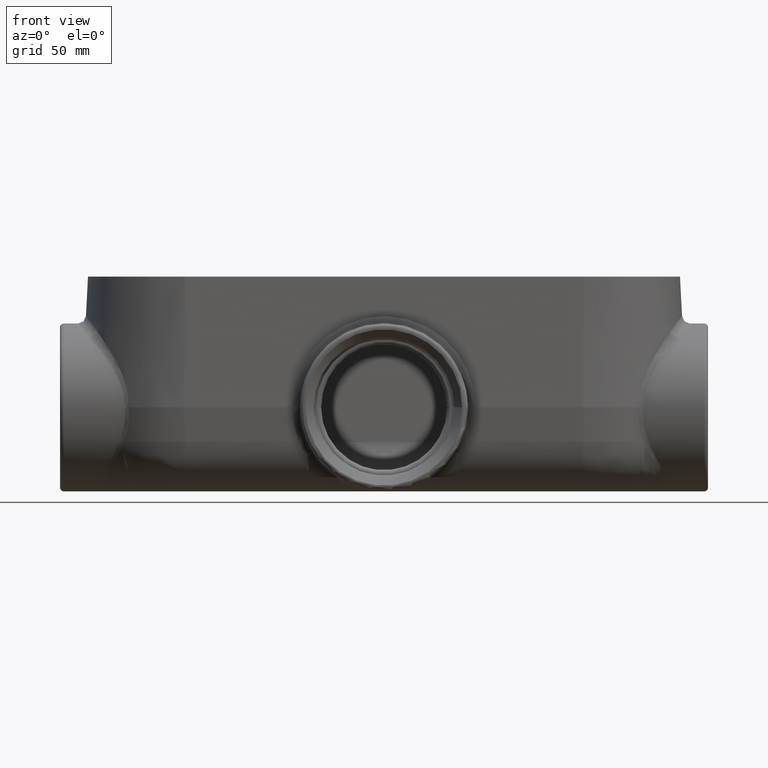
[diagram: clean part render]
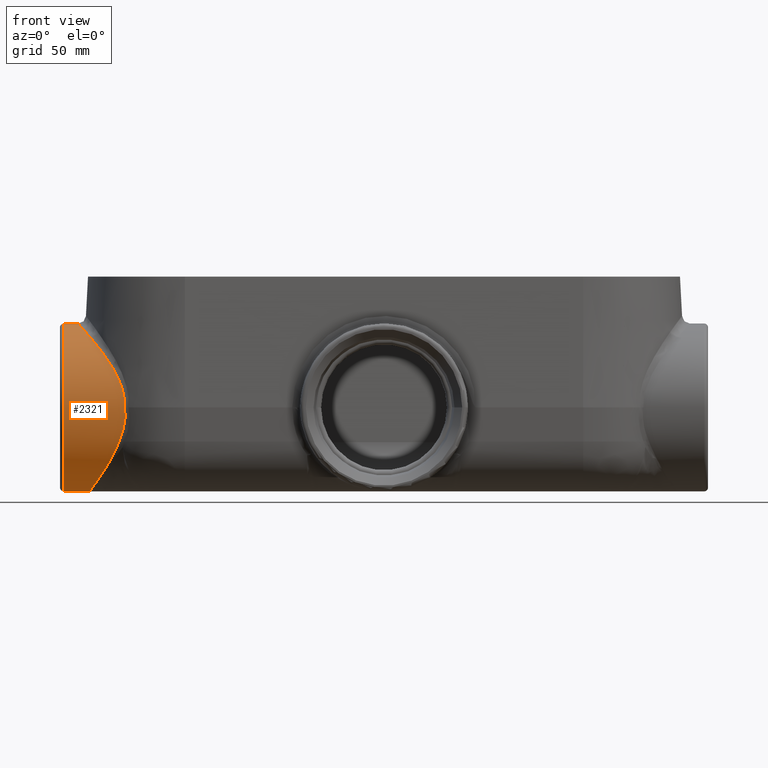
[diagram: same view with one face highlighted and labeled with its STEP entity id]
A machine part, front view. The second image highlights one B-rep face of the part: STEP entity #2321.
In plain terms, the highlighted cylindrical surface (bore or boss wall) has radius 34.1313 mm, axis along (1, 0, 0).
Its self-contained STEP definition (entity closure, byte-faithful):
#60=CYLINDRICAL_SURFACE('',#2557,1.34375);
#158=FACE_BOUND('',#369,.T.);
#211=FACE_OUTER_BOUND('',#368,.T.);
#368=EDGE_LOOP('',(#1730));
#369=EDGE_LOOP('',(#1731,#1732,#1733,#1734,#1735,#1736,#1737));
#546=B_SPLINE_CURVE_WITH_KNOTS('',3,(#4965,#4966,#4967,#4968),
 .UNSPECIFIED.,.F.,.F.,(4,4),(0.,1.),.UNSPECIFIED.);
#547=B_SPLINE_CURVE_WITH_KNOTS('',3,(#4970,#4971,#4972,#4973,#4974,#4975,
#4976,#4977,#4978,#4979,#4980,#4981,#4982,#4983,#4984,#4985,#4986,#4987,
#4988,#4989,#4990,#4991,#4992,#4993,#4994,#4995,#4996,#4997,#4998,#4999,
#5000,#5001,#5002,#5003,#5004,#5005,#5006),.UNSPECIFIED.,.F.,.F.,(4,3,3,
3,3,3,3,3,3,3,3,3,4),(0.,0.25,0.25343900419819,0.37970261507386,0.5,0.505675713028733,
0.568515824898813,0.625,0.631250147392502,0.75,0.756481970472387,0.881375322079641,
0.999975300137708),.UNSPECIFIED.);
#548=B_SPLINE_CURVE_WITH_KNOTS('',3,(#5008,#5009,#5010,#5011,#5012,#5013,
#5014,#5015,#5016,#5017,#5018,#5019,#5020,#5021,#5022,#5023,#5024,#5025,
#5026,#5027,#5028,#5029,#5030,#5031,#5032,#5033,#5034,#5035,#5036,#5037,
#5038,#5039,#5040,#5041,#5042,#5043,#5044,#5045,#5046,#5047,#5048,#5049,
#5050,#5051,#5052,#5053,#5054,#5055,#5056,#5057,#5058,#5059,#5060,#5061,
#5062,#5063,#5064,#5065,#5066,#5067,#5068,#5069,#5070,#5071,#5072,#5073,
#5074,#5075,#5076,#5077,#5078,#5079,#5080,#5081,#5082,#5083,#5084,#5085,
#5086,#5087,#5088,#5089,#5090,#5091,#5092,#5093,#5094,#5095,#5096,#5097,
#5098,#5099,#5100,#5101,#5102,#5103,#5104,#5105,#5106,#5107,#5108,#5109,
#5110,#5111,#5112,#5113,#5114,#5115,#5116,#5117,#5118,#5119,#5120,#5121,
#5122,#5123,#5124,#5125,#5126,#5127,#5128,#5129,#5130,#5131,#5132,#5133,
#5134,#5135,#5136,#5137,#5138,#5139,#5140,#5141,#5142,#5143,#5144,#5145,
#5146,#5147,#5148,#5149,#5150,#5151,#5152,#5153,#5154,#5155,#5156,#5157,
#5158,#5159,#5160,#5161,#5162,#5163,#5164,#5165,#5166,#5167,#5168,#5169,
#5170,#5171,#5172,#5173,#5174,#5175,#5176,#5177,#5178,#5179,#5180,#5181,
#5182,#5183,#5184,#5185,#5186,#5187,#5188,#5189,#5190,#5191,#5192,#5193,
#5194,#5195,#5196,#5197,#5198,#5199,#5200,#5201,#5202,#5203,#5204,#5205,
#5206,#5207,#5208,#5209,#5210,#5211,#5212,#5213,#5214,#5215,#5216,#5217,
#5218,#5219,#5220,#5221,#5222,#5223,#5224,#5225,#5226,#5227,#5228,#5229,
#5230,#5231,#5232,#5233,#5234,#5235,#5236,#5237,#5238,#5239,#5240,#5241,
#5242,#5243,#5244,#5245,#5246,#5247,#5248,#5249,#5250,#5251,#5252,#5253,
#5254,#5255,#5256,#5257,#5258,#5259,#5260,#5261,#5262,#5263,#5264,#5265,
#5266,#5267,#5268,#5269,#5270,#5271,#5272,#5273,#5274,#5275,#5276,#5277,
#5278,#5279,#5280,#5281,#5282,#5283,#5284,#5285,#5286,#5287,#5288,#5289,
#5290,#5291,#5292,#5293,#5294,#5295,#5296,#5297,#5298,#5299,#5300,#5301,
#5302,#5303,#5304,#5305,#5306,#5307,#5308,#5309,#5310,#5311,#5312,#5313,
#5314,#5315,#5316,#5317,#5318,#5319,#5320,#5321,#5322,#5323,#5324,#5325,
#5326,#5327,#5328,#5329,#5330,#5331,#5332,#5333,#5334,#5335,#5336,#5337,
#5338,#5339,#5340,#5341,#5342,#5343,#5344,#5345,#5346,#5347,#5348,#5349,
#5350,#5351,#5352,#5353,#5354,#5355,#5356),.UNSPECIFIED.,.F.,.F.,(4,3,3,
3,3,3,3,3,3,3,3,3,3,3,3,3,3,3,3,3,3,3,3,3,3,3,3,3,3,3,3,3,3,3,3,3,3,3,3,
3,3,3,3,3,3,3,3,3,3,3,3,3,3,3,3,3,3,3,3,3,3,3,3,3,3,3,3,3,3,3,3,3,3,3,3,
3,3,3,3,3,3,3,3,3,3,3,3,3,3,3,3,3,3,3,3,3,3,3,3,3,3,3,3,3,3,3,3,3,3,3,3,
3,3,3,3,3,4),(0.,0.00185403123234242,0.0057056478649271,0.0095664263885572,
0.015625,0.0173155324528526,0.0251013807362604,0.0312499999999999,0.0329218568058591,
0.0407588691764849,0.0486052164103672,0.0564617803745235,0.0624999999999998,
0.0722068884086565,0.0781249999999996,0.080093470432901,0.0879862197401328,
0.0937499999999995,0.0958932921614612,0.103811392851089,0.119671938115278,
0.124999999999999,0.135566911266893,0.15148857319233,0.156249999999999,
0.167431163078571,0.183388632555204,0.187499999999998,0.191370493156939,
0.199353652866863,0.215321734724285,0.231288358625257,0.24724895991254,
0.249999999999998,0.263199765493679,0.279139050789083,0.281249999999998,
0.287103416009191,0.295064004855109,0.296874999999997,0.310969256148258,
0.312499999999997,0.326850344149396,0.342706734256288,0.358540059347057,
0.374351982796038,0.374999999999997,0.382245482042361,0.390129728333218,
0.390624999999997,0.405886048881035,0.406249999999997,0.421620860272329,
0.437333930951147,0.437499999999997,0.453027872952672,0.460864346716804,
0.468749999999996,0.476512021356269,0.484339723564825,0.499999999999996,
0.515665083409847,0.531249999999996,0.546874999999996,0.547003543147062,
0.562499999999996,0.562683480705017,0.578396966975118,0.59412995848418,
0.609885084974499,0.624999999999996,0.62566501351515,0.633565135028443,
0.641472090849392,0.649385658497119,0.656249999999996,0.657305620318014,
0.673165153137192,0.687499999999996,0.689048547693168,0.720874332723891,
0.736814565468201,0.749999999999996,0.752771869923468,0.765624999999996,
0.768738512790066,0.781249999999996,0.784708231960899,0.800675907228072,
0.812499999999997,0.816638741350679,0.832592327186742,0.843749999999997,
0.848532099442459,0.8644518953113,0.872404743975445,0.874999999999998,0.880350685728842,
0.888285051628088,0.890624999999998,0.896213227201056,0.906249999999998,
0.912043028100169,0.927831224050163,0.937499999999999,0.943572783004577,
0.95142163079917,0.953124999999999,0.959252108021476,0.967070488679294,
0.968749999999999,0.974865931153049,0.982642317461226,0.990399573321078,
0.994270916701512,0.99813734603441,1.),.UNSPECIFIED.);
#549=B_SPLINE_CURVE_WITH_KNOTS('',3,(#5358,#5359,#5360,#5361,#5362,#5363,
#5364,#5365,#5366,#5367,#5368,#5369,#5370,#5371,#5372,#5373,#5374,#5375,
#5376,#5377,#5378,#5379,#5380,#5381,#5382,#5383,#5384,#5385,#5386,#5387,
#5388,#5389,#5390,#5391,#5392,#5393,#5394),.UNSPECIFIED.,.F.,.F.,(4,3,3,
3,3,3,3,3,3,3,3,3,4),(2.53546196081138E-5,0.118624677919555,0.243518029527616,
0.25,0.368749852607529,0.375,0.431484175101172,0.494324286971211,0.500000000000001,
0.620297384925995,0.746560995801694,0.750000000000001,1.),.UNSPECIFIED.);
#550=B_SPLINE_CURVE_WITH_KNOTS('',3,(#5396,#5397,#5398,#5399),
 .UNSPECIFIED.,.F.,.F.,(4,4),(0.,1.),.UNSPECIFIED.);
#551=B_SPLINE_CURVE_WITH_KNOTS('',3,(#5400,#5401,#5402,#5403,#5404,#5405,
#5406,#5407,#5408,#5409,#5410,#5411,#5412,#5413,#5414,#5415,#5416,#5417,
#5418,#5419,#5420,#5421,#5422,#5423,#5424,#5425,#5426,#5427,#5428,#5429,
#5430,#5431,#5432,#5433,#5434,#5435,#5436,#5437,#5438,#5439,#5440,#5441,
#5442,#5443,#5444,#5445,#5446,#5447,#5448,#5449,#5450,#5451,#5452,#5453,
#5454,#5455,#5456,#5457),.UNSPECIFIED.,.F.,.F.,(4,3,3,3,3,3,3,3,3,3,3,3,
3,3,3,3,3,3,3,4),(0.,0.0531373176590954,0.0624999999999998,0.125,0.187499999999999,
0.249999999999999,0.312499999999999,0.374999999999999,0.452227685967908,
0.499999999999999,0.5625,0.625,0.702675485156797,0.75,0.8125,0.875,0.9375,
0.96875,0.984375,1.),.UNSPECIFIED.);
#552=B_SPLINE_CURVE_WITH_KNOTS('',3,(#5458,#5459,#5460,#5461,#5462,#5463,
#5464,#5465,#5466,#5467,#5468,#5469,#5470,#5471,#5472,#5473,#5474,#5475,
#5476,#5477,#5478,#5479,#5480,#5481,#5482,#5483,#5484,#5485,#5486,#5487,
#5488,#5489,#5490,#5491,#5492,#5493,#5494,#5495,#5496,#5497,#5498,#5499,
#5500,#5501,#5502,#5503,#5504,#5505,#5506,#5507,#5508,#5509,#5510,#5511,
#5512,#5513,#5514,#5515,#5516,#5517,#5518,#5519,#5520,#5521,#5522,#5523,
#5524,#5525,#5526,#5527,#5528,#5529,#5530,#5531,#5532,#5533,#5534,#5535,
#5536,#5537,#5538,#5539,#5540,#5541,#5542,#5543,#5544,#5545,#5546,#5547,
#5548,#5549,#5550,#5551,#5552,#5553,#5554,#5555,#5556,#5557,#5558,#5559,
#5560,#5561,#5562,#5563,#5564,#5565,#5566,#5567,#5568,#5569,#5570,#5571,
#5572,#5573,#5574,#5575),.UNSPECIFIED.,.F.,.F.,(4,3,3,3,3,3,3,3,3,3,3,3,
3,3,3,3,3,3,3,3,3,3,3,3,3,3,3,3,3,3,3,3,3,3,3,3,3,3,3,4),(0.,0.0312485716751018,
0.0625000000000001,0.125,0.125277307232812,0.156658032581049,0.188083229023406,
0.250000000000001,0.250995913726812,0.31392985798759,0.375000000000002,
0.376869432011077,0.408356100356295,0.437500000000003,0.439777712535055,
0.500000000000003,0.502275318924888,0.564721541115607,0.625000000000002,
0.627112477440115,0.687500000000002,0.689440054709644,0.72056963053039,
0.750000000000002,0.751692780535557,0.812500000000001,0.813861879370144,
0.844908622372178,0.875000000000001,0.875943872764356,0.937500000000001,
0.937983016718585,0.96875,0.984375,0.9921875,0.99609375,0.998046875,0.9990234375,
0.99951171875,1.),.UNSPECIFIED.);
#894=CIRCLE('',#2558,1.34375);
#982=VERTEX_POINT('',#3663);
#1098=VERTEX_POINT('',#4961);
#1099=VERTEX_POINT('',#4963);
#1100=VERTEX_POINT('',#4964);
#1101=VERTEX_POINT('',#4969);
#1102=VERTEX_POINT('',#5007);
#1103=VERTEX_POINT('',#5357);
#1104=VERTEX_POINT('',#5395);
#1349=EDGE_CURVE('',#1098,#1098,#894,.F.);
#1350=EDGE_CURVE('',#1099,#1100,#546,.T.);
#1351=EDGE_CURVE('',#1100,#1101,#547,.T.);
#1352=EDGE_CURVE('',#1101,#1102,#548,.T.);
#1353=EDGE_CURVE('',#1102,#1103,#549,.T.);
#1354=EDGE_CURVE('',#1103,#1104,#550,.T.);
#1355=EDGE_CURVE('',#1104,#982,#551,.T.);
#1356=EDGE_CURVE('',#982,#1099,#552,.F.);
#1730=ORIENTED_EDGE('',*,*,#1349,.T.);
#1731=ORIENTED_EDGE('',*,*,#1350,.T.);
#1732=ORIENTED_EDGE('',*,*,#1351,.T.);
#1733=ORIENTED_EDGE('',*,*,#1352,.T.);
#1734=ORIENTED_EDGE('',*,*,#1353,.T.);
#1735=ORIENTED_EDGE('',*,*,#1354,.T.);
#1736=ORIENTED_EDGE('',*,*,#1355,.T.);
#1737=ORIENTED_EDGE('',*,*,#1356,.T.);
#2321=ADVANCED_FACE('',(#211,#158),#60,.T.);
#2557=AXIS2_PLACEMENT_3D('',#4960,#2984,#2985);
#2558=AXIS2_PLACEMENT_3D('',#4962,#2986,#2987);
#2984=DIRECTION('center_axis',(1.,0.,0.));
#2985=DIRECTION('ref_axis',(0.,0.,-1.));
#2986=DIRECTION('center_axis',(-1.,0.,0.));
#2987=DIRECTION('ref_axis',(0.,0.,1.));
#3663=CARTESIAN_POINT('',(-2.76805246950778,-0.656250000065793,-3.4375));
#4960=CARTESIAN_POINT('Origin',(-3.25,-0.656250000000008,-2.09375));
#4961=CARTESIAN_POINT('',(-3.188,-0.656250000000008,-0.75));
#4962=CARTESIAN_POINT('Origin',(-3.188,-0.656250000000008,-2.09375));
#4963=CARTESIAN_POINT('',(-2.3264638163102,-1.85817305475021,-2.69462022971683));
#4964=CARTESIAN_POINT('',(-2.2913044444794,-1.90003277017154,-2.6023446157053));
#4965=CARTESIAN_POINT('Ctrl Pts',(-2.3264638163102,-1.85817305475021,-2.69462022971683));
#4966=CARTESIAN_POINT('Ctrl Pts',(-2.31613775366073,-1.87350320727616,-2.66395526606491));
#4967=CARTESIAN_POINT('Ctrl Pts',(-2.30444514049265,-1.88742678421558,-2.63317291716365));
#4968=CARTESIAN_POINT('Ctrl Pts',(-2.2913044444794,-1.90003277017154,-2.6023446157053));
#4969=CARTESIAN_POINT('',(-2.22114857445606,-1.9999964089252,-2.09675419691271));
#4970=CARTESIAN_POINT('Ctrl Pts',(-2.2913044444794,-1.90003277017154,-2.6023446157053));
#4971=CARTESIAN_POINT('Ctrl Pts',(-2.27498384534427,-1.91568926529662,-2.56405620627956));
#4972=CARTESIAN_POINT('Ctrl Pts',(-2.26039079579239,-1.92969158644605,-2.52479688368842));
#4973=CARTESIAN_POINT('Ctrl Pts',(-2.24816657275677,-1.94197290089884,-2.48436603716328));
#4974=CARTESIAN_POINT('Ctrl Pts',(-2.24799841613941,-1.94214184286669,-2.48380986975954));
#4975=CARTESIAN_POINT('Ctrl Pts',(-2.24783070614044,-1.94231046197272,-2.48325347100162));
#4976=CARTESIAN_POINT('Ctrl Pts',(-2.24766344456631,-1.94247875791971,-2.48269684060422));
#4977=CARTESIAN_POINT('Ctrl Pts',(-2.24152240806442,-1.94865777159288,-2.46226006302302));
#4978=CARTESIAN_POINT('Ctrl Pts',(-2.23598593394696,-1.95440102374301,-2.44151097172504));
#4979=CARTESIAN_POINT('Ctrl Pts',(-2.23115646249839,-1.95968228413214,-2.42044304123918));
#4980=CARTESIAN_POINT('Ctrl Pts',(-2.22655519391585,-1.96471399366048,-2.40037061557609));
#4981=CARTESIAN_POINT('Ctrl Pts',(-2.2225957408785,-1.96932634138665,-2.38000881049778));
#4982=CARTESIAN_POINT('Ctrl Pts',(-2.21936500845538,-1.9735002926569,-2.35929872740546));
#4983=CARTESIAN_POINT('Ctrl Pts',(-2.21921258028649,-1.97369722253713,-2.35832161149803));
#4984=CARTESIAN_POINT('Ctrl Pts',(-2.21906176124022,-1.97389319999301,-2.35734360545364));
#4985=CARTESIAN_POINT('Ctrl Pts',(-2.21891256192706,-1.97408822149878,-2.35636470725415));
#4986=CARTESIAN_POINT('Ctrl Pts',(-2.21726066348147,-1.97624745209718,-2.3455265848801));
#4987=CARTESIAN_POINT('Ctrl Pts',(-2.21580738756752,-1.97828946140787,-2.33457896467909));
#4988=CARTESIAN_POINT('Ctrl Pts',(-2.21457623333023,-1.98019288761952,-2.32361798999631));
#4989=CARTESIAN_POINT('Ctrl Pts',(-2.2134696036721,-1.98190379258501,-2.31376565850234));
#4990=CARTESIAN_POINT('Ctrl Pts',(-2.21254244185033,-1.98350272058467,-2.30390262982509));
#4991=CARTESIAN_POINT('Ctrl Pts',(-2.21179682591855,-1.9849896123342,-2.29403773839078));
#4992=CARTESIAN_POINT('Ctrl Pts',(-2.21171432122651,-1.98515414147133,-2.29294615786641));
#4993=CARTESIAN_POINT('Ctrl Pts',(-2.21163403870132,-1.98531730803285,-2.29185449698136));
#4994=CARTESIAN_POINT('Ctrl Pts',(-2.2115559811046,-1.9854791129537,-2.29076276044164));
#4995=CARTESIAN_POINT('Ctrl Pts',(-2.21007292358237,-1.98855333013551,-2.27002028109898));
#4996=CARTESIAN_POINT('Ctrl Pts',(-2.20939307390433,-1.99113597186582,-2.24925050113644));
#4997=CARTESIAN_POINT('Ctrl Pts',(-2.20952830785011,-1.99323128457834,-2.22845376437177));
#4998=CARTESIAN_POINT('Ctrl Pts',(-2.20953568960616,-1.99334565739511,-2.22731857278483));
#4999=CARTESIAN_POINT('Ctrl Pts',(-2.20954549962693,-1.99345857834444,-2.22618330081084));
#5000=CARTESIAN_POINT('Ctrl Pts',(-2.20955773985827,-1.99357004820208,-2.22504794810695));
#5001=CARTESIAN_POINT('Ctrl Pts',(-2.20979358226497,-1.99571782782911,-2.20317219210821));
#5002=CARTESIAN_POINT('Ctrl Pts',(-2.21093164414155,-1.99732688800437,-2.18126646190663));
#5003=CARTESIAN_POINT('Ctrl Pts',(-2.21296935413441,-1.99839869880471,-2.15933149736722));
#5004=CARTESIAN_POINT('Ctrl Pts',(-2.21490438396051,-1.99941650107975,-2.13850183526271));
#5005=CARTESIAN_POINT('Ctrl Pts',(-2.21765069409303,-1.99994983805196,-2.11764581340637));
#5006=CARTESIAN_POINT('Ctrl Pts',(-2.22119399116915,-1.99999662581896,-2.09676228228483));
#5007=CARTESIAN_POINT('',(-2.2211474418786,0.687496404115879,-2.09675435937861));
#5008=CARTESIAN_POINT('Ctrl Pts',(-2.22119620246496,-1.9999961637795,-2.09674923362262));
#5009=CARTESIAN_POINT('Ctrl Pts',(-2.22098925303896,-2.00000260305783,-2.09391111660619));
#5010=CARTESIAN_POINT('Ctrl Pts',(-2.22079690452424,-2.00000019606449,-2.09107356679661));
#5011=CARTESIAN_POINT('Ctrl Pts',(-2.22061959607984,-1.99998869200376,-2.08823654584058));
#5012=CARTESIAN_POINT('Ctrl Pts',(-2.22025125053009,-1.99996479314439,-2.08234283870629));
#5013=CARTESIAN_POINT('Ctrl Pts',(-2.21994781139044,-1.99990163539773,-2.07645141405731));
#5014=CARTESIAN_POINT('Ctrl Pts',(-2.21970829702608,-1.9997999242892,-2.07056234577987));
#5015=CARTESIAN_POINT('Ctrl Pts',(-2.21946821292577,-1.99969797123913,-2.0646592690984));
#5016=CARTESIAN_POINT('Ctrl Pts',(-2.21929235958084,-1.99955728019212,-2.05875855965585));
#5017=CARTESIAN_POINT('Ctrl Pts',(-2.21918102355269,-1.99937772005505,-2.05285999404038));
#5018=CARTESIAN_POINT('Ctrl Pts',(-2.21900630813766,-1.99909594312807,-2.04360359827343));
#5019=CARTESIAN_POINT('Ctrl Pts',(-2.2189904699617,-1.99871844848452,-2.03435248373389));
#5020=CARTESIAN_POINT('Ctrl Pts',(-2.21913262538018,-1.99824558779523,-2.02510750593437));
#5021=CARTESIAN_POINT('Ctrl Pts',(-2.21917229120975,-1.99811364480136,-2.02252786656736));
#5022=CARTESIAN_POINT('Ctrl Pts',(-2.21922422925348,-1.99797427835836,-2.01994873293555));
#5023=CARTESIAN_POINT('Ctrl Pts',(-2.21928842440983,-1.99782749554946,-2.0173701073091));
#5024=CARTESIAN_POINT('Ctrl Pts',(-2.21958407904044,-1.99715147854738,-2.00549409281828));
#5025=CARTESIAN_POINT('Ctrl Pts',(-2.22013970108406,-1.99631815870918,-1.99362883164831));
#5026=CARTESIAN_POINT('Ctrl Pts',(-2.22095554079999,-1.99532565078236,-1.98176571178628));
#5027=CARTESIAN_POINT('Ctrl Pts',(-2.22159982355646,-1.99454185007932,-1.97239720052628));
#5028=CARTESIAN_POINT('Ctrl Pts',(-2.22240637915924,-1.99365878347763,-1.96303013388692));
#5029=CARTESIAN_POINT('Ctrl Pts',(-2.22336529980406,-1.99268367310993,-1.95372040436989));
#5030=CARTESIAN_POINT('Ctrl Pts',(-2.22362603769293,-1.99241853311105,-1.95118901740541));
#5031=CARTESIAN_POINT('Ctrl Pts',(-2.22389809809815,-1.99214649500118,-1.94866098525405));
#5032=CARTESIAN_POINT('Ctrl Pts',(-2.22418130024682,-1.99186768998838,-1.94613744909761));
#5033=CARTESIAN_POINT('Ctrl Pts',(-2.22550884141822,-1.99056076087422,-1.93430809624489));
#5034=CARTESIAN_POINT('Ctrl Pts',(-2.22708120905047,-1.98910513465779,-1.92257752579669));
#5035=CARTESIAN_POINT('Ctrl Pts',(-2.22888458406849,-1.98750494654588,-1.91092676127171));
#5036=CARTESIAN_POINT('Ctrl Pts',(-2.23069010713201,-1.98590285240951,-1.89926211922702));
#5037=CARTESIAN_POINT('Ctrl Pts',(-2.23272718714764,-1.98415585217902,-1.88767748472175));
#5038=CARTESIAN_POINT('Ctrl Pts',(-2.23498176180285,-1.98226839384795,-1.87617407356282));
#5039=CARTESIAN_POINT('Ctrl Pts',(-2.23723927214016,-1.98037847785701,-1.86465568380997));
#5040=CARTESIAN_POINT('Ctrl Pts',(-2.23971484301231,-1.97834773747779,-1.85321872544826));
#5041=CARTESIAN_POINT('Ctrl Pts',(-2.2423945149753,-1.97617992255397,-1.84185902646124));
#5042=CARTESIAN_POINT('Ctrl Pts',(-2.24445399643699,-1.97451383255876,-1.83312844682416));
#5043=CARTESIAN_POINT('Ctrl Pts',(-2.24663403652558,-1.97276677589736,-1.82444350336674));
#5044=CARTESIAN_POINT('Ctrl Pts',(-2.24892844859101,-1.97094010564517,-1.81580315319785));
#5045=CARTESIAN_POINT('Ctrl Pts',(-2.25261688711494,-1.96800359697255,-1.80191314586071));
#5046=CARTESIAN_POINT('Ctrl Pts',(-2.25660164370736,-1.96486073265925,-1.78813546990492));
#5047=CARTESIAN_POINT('Ctrl Pts',(-2.26085770627746,-1.96151669185873,-1.77446497740239));
#5048=CARTESIAN_POINT('Ctrl Pts',(-2.26345254946193,-1.95947789159748,-1.7661303291884));
#5049=CARTESIAN_POINT('Ctrl Pts',(-2.26614824390579,-1.95736431110681,-1.75783552244252));
#5050=CARTESIAN_POINT('Ctrl Pts',(-2.26893981255754,-1.95517643252135,-1.74957830305593));
#5051=CARTESIAN_POINT('Ctrl Pts',(-2.26986833853539,-1.95444870472511,-1.7468318032697));
#5052=CARTESIAN_POINT('Ctrl Pts',(-2.27080761505173,-1.95371263900956,-1.74408901776025));
#5053=CARTESIAN_POINT('Ctrl Pts',(-2.27175742433138,-1.95296828224228,-1.74135000082788));
#5054=CARTESIAN_POINT('Ctrl Pts',(-2.27556576526891,-1.94998372059425,-1.7303676799181));
#5055=CARTESIAN_POINT('Ctrl Pts',(-2.27954351232914,-1.94686580119324,-1.71944597856856));
#5056=CARTESIAN_POINT('Ctrl Pts',(-2.2836721206086,-1.94362101932427,-1.70860077454665));
#5057=CARTESIAN_POINT('Ctrl Pts',(-2.28668708915448,-1.94125147622137,-1.70068092679494));
#5058=CARTESIAN_POINT('Ctrl Pts',(-2.28978247876536,-1.93881430384296,-1.692801883734));
#5059=CARTESIAN_POINT('Ctrl Pts',(-2.29294245434929,-1.93631898585687,-1.6849872335613));
#5060=CARTESIAN_POINT('Ctrl Pts',(-2.29411750797627,-1.93539108867155,-1.68208131458026));
#5061=CARTESIAN_POINT('Ctrl Pts',(-2.29530182388257,-1.93445487835137,-1.67918343538485));
#5062=CARTESIAN_POINT('Ctrl Pts',(-2.29649466581714,-1.9335107784603,-1.67629464821517));
#5063=CARTESIAN_POINT('Ctrl Pts',(-2.30090145772096,-1.93002293012446,-1.66562241785306));
#5064=CARTESIAN_POINT('Ctrl Pts',(-2.30542461551531,-1.92642739860004,-1.65507427004643));
#5065=CARTESIAN_POINT('Ctrl Pts',(-2.31005509384477,-1.92272388715509,-1.64463090874776));
#5066=CARTESIAN_POINT('Ctrl Pts',(-2.31933028672473,-1.91530547796689,-1.62371207845239));
#5067=CARTESIAN_POINT('Ctrl Pts',(-2.32903603085427,-1.90745380466094,-1.60321370958039));
#5068=CARTESIAN_POINT('Ctrl Pts',(-2.33907625682647,-1.89918996924624,-1.58309914322007));
#5069=CARTESIAN_POINT('Ctrl Pts',(-2.34244908824087,-1.89641388395023,-1.57634202027335));
#5070=CARTESIAN_POINT('Ctrl Pts',(-2.34585967228624,-1.89359128873526,-1.56962820970703));
#5071=CARTESIAN_POINT('Ctrl Pts',(-2.34930515291364,-1.89072256949182,-1.56295627987848));
#5072=CARTESIAN_POINT('Ctrl Pts',(-2.3561384234066,-1.88503316453541,-1.54972413430611));
#5073=CARTESIAN_POINT('Ctrl Pts',(-2.3631101309548,-1.87916130450761,-1.53665426600416));
#5074=CARTESIAN_POINT('Ctrl Pts',(-2.37019931234317,-1.87310889305217,-1.52373377385036));
#5075=CARTESIAN_POINT('Ctrl Pts',(-2.38088091518273,-1.8639894402061,-1.50426586096767));
#5076=CARTESIAN_POINT('Ctrl Pts',(-2.39182918383668,-1.85446010958307,-1.48513704890192));
#5077=CARTESIAN_POINT('Ctrl Pts',(-2.40298390011694,-1.84452165276306,-1.46631510812212));
#5078=CARTESIAN_POINT('Ctrl Pts',(-2.40631975571904,-1.84154952366302,-1.46068634312127));
#5079=CARTESIAN_POINT('Ctrl Pts',(-2.40967408063476,-1.83854080112728,-1.45508502723025));
#5080=CARTESIAN_POINT('Ctrl Pts',(-2.41304551932414,-1.83549536550578,-1.44951048205469));
#5081=CARTESIAN_POINT('Ctrl Pts',(-2.42096260118176,-1.82834383011426,-1.43641988942047));
#5082=CARTESIAN_POINT('Ctrl Pts',(-2.42897370836632,-1.82099011479415,-1.42347737855376));
#5083=CARTESIAN_POINT('Ctrl Pts',(-2.43706167322795,-1.81343231679384,-1.41067376046083));
#5084=CARTESIAN_POINT('Ctrl Pts',(-2.44860460945922,-1.80264602112379,-1.39240076475611));
#5085=CARTESIAN_POINT('Ctrl Pts',(-2.46030407941308,-1.79144407849831,-1.37441064656685));
#5086=CARTESIAN_POINT('Ctrl Pts',(-2.47211981623333,-1.77981272409115,-1.35668089284228));
#5087=CARTESIAN_POINT('Ctrl Pts',(-2.47516408561265,-1.776815959979,-1.35211290464251));
#5088=CARTESIAN_POINT('Ctrl Pts',(-2.47821607514991,-1.77379068688781,-1.34756220306489));
#5089=CARTESIAN_POINT('Ctrl Pts',(-2.48127240470047,-1.77073947582762,-1.34303246022635));
#5090=CARTESIAN_POINT('Ctrl Pts',(-2.48414967187973,-1.76786702725973,-1.33876810319801));
#5091=CARTESIAN_POINT('Ctrl Pts',(-2.48703074451681,-1.76497162960688,-1.33452237865162));
#5092=CARTESIAN_POINT('Ctrl Pts',(-2.48991278440161,-1.76205544545848,-1.33029837727571));
#5093=CARTESIAN_POINT('Ctrl Pts',(-2.4958571909043,-1.75604061405167,-1.32158608242555));
#5094=CARTESIAN_POINT('Ctrl Pts',(-2.5018057126163,-1.74993735392767,-1.31296619938197));
#5095=CARTESIAN_POINT('Ctrl Pts',(-2.50775643976013,-1.74374260045348,-1.30443136523597));
#5096=CARTESIAN_POINT('Ctrl Pts',(-2.51965920778639,-1.73135172589293,-1.28735981271355));
#5097=CARTESIAN_POINT('Ctrl Pts',(-2.53157079928681,-1.71859482421645,-1.27062850866519));
#5098=CARTESIAN_POINT('Ctrl Pts',(-2.54345633005362,-1.70546686727991,-1.25422154392773));
#5099=CARTESIAN_POINT('Ctrl Pts',(-2.55534077561894,-1.69234010898385,-1.23781607721866));
#5100=CARTESIAN_POINT('Ctrl Pts',(-2.56719917123893,-1.67884236466395,-1.2217348929532));
#5101=CARTESIAN_POINT('Ctrl Pts',(-2.579003312799,-1.66496210162456,-1.20596401268192));
#5102=CARTESIAN_POINT('Ctrl Pts',(-2.59080300183453,-1.65108707422312,-1.1901990811898));
#5103=CARTESIAN_POINT('Ctrl Pts',(-2.60254848290654,-1.63682981920744,-1.17474422027718));
#5104=CARTESIAN_POINT('Ctrl Pts',(-2.61421326901068,-1.62217552947589,-1.15959159021424));
#5105=CARTESIAN_POINT('Ctrl Pts',(-2.61622386332392,-1.61964965104693,-1.15697981563362));
#5106=CARTESIAN_POINT('Ctrl Pts',(-2.61823205981022,-1.61711197575776,-1.15437702098179));
#5107=CARTESIAN_POINT('Ctrl Pts',(-2.62023772978483,-1.61456240763241,-1.15178318931737));
#5108=CARTESIAN_POINT('Ctrl Pts',(-2.62986113492647,-1.60232932476379,-1.13933772556111));
#5109=CARTESIAN_POINT('Ctrl Pts',(-2.63942597705543,-1.58982296134387,-1.12709911229368));
#5110=CARTESIAN_POINT('Ctrl Pts',(-2.64891750574693,-1.57703332930681,-1.11506612707078));
#5111=CARTESIAN_POINT('Ctrl Pts',(-2.66037893540459,-1.56158929782312,-1.10053577920097));
#5112=CARTESIAN_POINT('Ctrl Pts',(-2.67173346824532,-1.54573222603011,-1.08630526466723));
#5113=CARTESIAN_POINT('Ctrl Pts',(-2.68295622577873,-1.52943899671353,-1.07237590630173));
#5114=CARTESIAN_POINT('Ctrl Pts',(-2.68444253276932,-1.52728117226082,-1.07053114554205));
#5115=CARTESIAN_POINT('Ctrl Pts',(-2.6859265282127,-1.52511569734372,-1.06869166716305));
#5116=CARTESIAN_POINT('Ctrl Pts',(-2.68740813638165,-1.52294252714279,-1.06685750512377));
#5117=CARTESIAN_POINT('Ctrl Pts',(-2.69151646306741,-1.51691657958373,-1.06177158766604));
#5118=CARTESIAN_POINT('Ctrl Pts',(-2.69560675442417,-1.51083100853274,-1.05672616604936));
#5119=CARTESIAN_POINT('Ctrl Pts',(-2.69967710350276,-1.5046852455977,-1.0517223144128));
#5120=CARTESIAN_POINT('Ctrl Pts',(-2.70521273866403,-1.4963270677758,-1.04491712485135));
#5121=CARTESIAN_POINT('Ctrl Pts',(-2.71071149106431,-1.4878575519156,-1.0381888208403));
#5122=CARTESIAN_POINT('Ctrl Pts',(-2.7161503029268,-1.47930579241413,-1.0315620567265));
#5123=CARTESIAN_POINT('Ctrl Pts',(-2.71738760610469,-1.47736030882777,-1.03005450020416));
#5124=CARTESIAN_POINT('Ctrl Pts',(-2.7186218070864,-1.47541056938625,-1.02855219867699));
#5125=CARTESIAN_POINT('Ctrl Pts',(-2.71985288142398,-1.47345654922158,-1.02705514284143));
#5126=CARTESIAN_POINT('Ctrl Pts',(-2.72943384418929,-1.45824918613311,-1.01540415168657));
#5127=CARTESIAN_POINT('Ctrl Pts',(-2.73883422832306,-1.44276885403332,-1.00406061404912));
#5128=CARTESIAN_POINT('Ctrl Pts',(-2.74803903540738,-1.42700757177336,-0.993024407782785));
#5129=CARTESIAN_POINT('Ctrl Pts',(-2.74903874775137,-1.42529577615526,-0.991825791501726));
#5130=CARTESIAN_POINT('Ctrl Pts',(-2.75003615401491,-1.42358066772571,-0.990630798769288));
#5131=CARTESIAN_POINT('Ctrl Pts',(-2.75103122359909,-1.42186225181733,-0.989439446531219));
#5132=CARTESIAN_POINT('Ctrl Pts',(-2.76035975428002,-1.40575252865955,-0.978270814627189));
#5133=CARTESIAN_POINT('Ctrl Pts',(-2.76948624435097,-1.3893464317433,-0.967418189552606));
#5134=CARTESIAN_POINT('Ctrl Pts',(-2.77839108920002,-1.37263800689996,-0.956889281713138));
#5135=CARTESIAN_POINT('Ctrl Pts',(-2.78823048345413,-1.35417605925401,-0.945255381622378));
#5136=CARTESIAN_POINT('Ctrl Pts',(-2.79779926664376,-1.33534500291721,-0.934016714077587));
#5137=CARTESIAN_POINT('Ctrl Pts',(-2.80707392410698,-1.3161259321716,-0.923182685829827));
#5138=CARTESIAN_POINT('Ctrl Pts',(-2.8163350904715,-1.29693481786334,-0.912364416972101));
#5139=CARTESIAN_POINT('Ctrl Pts',(-2.82530298931383,-1.27735681061195,-0.901949604748161));
#5140=CARTESIAN_POINT('Ctrl Pts',(-2.83394756663226,-1.25738117270955,-0.891957420625309));
#5141=CARTESIAN_POINT('Ctrl Pts',(-2.84258045921952,-1.23743253554417,-0.881978742771296));
#5142=CARTESIAN_POINT('Ctrl Pts',(-2.85089089527135,-1.21708736975452,-0.872421558800818));
#5143=CARTESIAN_POINT('Ctrl Pts',(-2.85885927245108,-1.19629112627967,-0.863294938883132));
#5144=CARTESIAN_POINT('Ctrl Pts',(-2.85918583901439,-1.19543883758798,-0.862920904266804));
#5145=CARTESIAN_POINT('Ctrl Pts',(-2.85951183105907,-1.19458579123215,-0.862547592804729));
#5146=CARTESIAN_POINT('Ctrl Pts',(-2.85983723606544,-1.19373201457566,-0.862175017927242));
#5147=CARTESIAN_POINT('Ctrl Pts',(-2.86347559028774,-1.18418593555955,-0.858009257253336));
#5148=CARTESIAN_POINT('Ctrl Pts',(-2.86704367194643,-1.17453994420143,-0.853931874475833));
#5149=CARTESIAN_POINT('Ctrl Pts',(-2.87052142945544,-1.16483822230959,-0.849964614712092));
#5150=CARTESIAN_POINT('Ctrl Pts',(-2.8743057872912,-1.15428119319912,-0.845647599930432));
#5151=CARTESIAN_POINT('Ctrl Pts',(-2.87798316471095,-1.14365821272699,-0.841461012656021));
#5152=CARTESIAN_POINT('Ctrl Pts',(-2.88154752833395,-1.13298266799267,-0.837410067478087));
#5153=CARTESIAN_POINT('Ctrl Pts',(-2.88177143411358,-1.13231205286482,-0.837155595674913));
#5154=CARTESIAN_POINT('Ctrl Pts',(-2.88199489414881,-1.13164123042738,-0.836901658863548));
#5155=CARTESIAN_POINT('Ctrl Pts',(-2.88221790744611,-1.13097020243652,-0.83664825782768));
#5156=CARTESIAN_POINT('Ctrl Pts',(-2.88908972560066,-1.11029348770395,-0.828840087374419));
#5157=CARTESIAN_POINT('Ctrl Pts',(-2.89554551643327,-1.08939688127589,-0.821531347248205));
#5158=CARTESIAN_POINT('Ctrl Pts',(-2.90157138714811,-1.06827588509268,-0.814727430776636));
#5159=CARTESIAN_POINT('Ctrl Pts',(-2.90171509433407,-1.06777218379047,-0.814565168468687));
#5160=CARTESIAN_POINT('Ctrl Pts',(-2.90185855702964,-1.06726835487878,-0.814403193243365));
#5161=CARTESIAN_POINT('Ctrl Pts',(-2.90200177499734,-1.06676439835297,-0.814241505254485));
#5162=CARTESIAN_POINT('Ctrl Pts',(-2.90805034376189,-1.0454806463928,-0.807412886367728));
#5163=CARTESIAN_POINT('Ctrl Pts',(-2.91366264644137,-1.02396843874558,-0.801096312269774));
#5164=CARTESIAN_POINT('Ctrl Pts',(-2.91882182438124,-1.00222298350462,-0.795302173630287));
#5165=CARTESIAN_POINT('Ctrl Pts',(-2.92409586410169,-0.97999339654003,-0.789379036710684));
#5166=CARTESIAN_POINT('Ctrl Pts',(-2.92889638124743,-0.957520064537498,
-0.784001852670123));
#5167=CARTESIAN_POINT('Ctrl Pts',(-2.93320283370388,-0.934792770550103,
-0.779186198498842));
#5168=CARTESIAN_POINT('Ctrl Pts',(-2.93324834794345,-0.934552569244289,
-0.779135302583959));
#5169=CARTESIAN_POINT('Ctrl Pts',(-2.93329380699327,-0.934312339569606,
-0.779084469394458));
#5170=CARTESIAN_POINT('Ctrl Pts',(-2.9333392108235,-0.934072081519141,-0.779033698956855));
#5171=CARTESIAN_POINT('Ctrl Pts',(-2.93758458292724,-0.911607350677731,
-0.774286535591281));
#5172=CARTESIAN_POINT('Ctrl Pts',(-2.9413453210617,-0.888905081382834,-0.770089896121508));
#5173=CARTESIAN_POINT('Ctrl Pts',(-2.94460012172366,-0.865942837592334,
-0.766462169248153));
#5174=CARTESIAN_POINT('Ctrl Pts',(-2.94624272661054,-0.854354449306426,
-0.764631359158894));
#5175=CARTESIAN_POINT('Ctrl Pts',(-2.94775642205632,-0.842699828227751,
-0.76294550383252));
#5176=CARTESIAN_POINT('Ctrl Pts',(-2.94913842596337,-0.830968815138772,
-0.761407171871136));
#5177=CARTESIAN_POINT('Ctrl Pts',(-2.95052910294066,-0.819164181490448,
-0.759859185768323));
#5178=CARTESIAN_POINT('Ctrl Pts',(-2.95178643433635,-0.807282166471456,
-0.758460576047144));
#5179=CARTESIAN_POINT('Ctrl Pts',(-2.95290366874513,-0.795344551250498,
-0.757218380801188));
#5180=CARTESIAN_POINT('Ctrl Pts',(-2.95400338706009,-0.783594094952155,
-0.755995660795437));
#5181=CARTESIAN_POINT('Ctrl Pts',(-2.95496576042034,-0.771806504412812,
-0.754926195564794));
#5182=CARTESIAN_POINT('Ctrl Pts',(-2.9557860688374,-0.76004699647229,-0.754014857991389));
#5183=CARTESIAN_POINT('Ctrl Pts',(-2.95661331855923,-0.748187981654818,
-0.753095808840575));
#5184=CARTESIAN_POINT('Ctrl Pts',(-2.95729609222022,-0.736357492304934,
-0.752337571183526));
#5185=CARTESIAN_POINT('Ctrl Pts',(-2.95783760570182,-0.724537867967622,
-0.751736277310827));
#5186=CARTESIAN_POINT('Ctrl Pts',(-2.95892096970689,-0.700891262673946,
-0.750533315315807));
#5187=CARTESIAN_POINT('Ctrl Pts',(-2.95943911490631,-0.677288152049436,
-0.749958326656459));
#5188=CARTESIAN_POINT('Ctrl Pts',(-2.95939933851585,-0.653725745303346,
-0.750002368200407));
#5189=CARTESIAN_POINT('Ctrl Pts',(-2.9593595499159,-0.630156105997022,-0.750046423263056));
#5190=CARTESIAN_POINT('Ctrl Pts',(-2.95876149381176,-0.606636374607429,
-0.750710117463243));
#5191=CARTESIAN_POINT('Ctrl Pts',(-2.95760964677407,-0.583160466691545,
-0.751989219822755));
#5192=CARTESIAN_POINT('Ctrl Pts',(-2.95646369436914,-0.5598046978664,-0.753261776314265));
#5193=CARTESIAN_POINT('Ctrl Pts',(-2.954769603619,-0.536492306474009,-0.755143459394605));
#5194=CARTESIAN_POINT('Ctrl Pts',(-2.95253076110704,-0.513228708429791,
-0.7576328807905));
#5195=CARTESIAN_POINT('Ctrl Pts',(-2.95028616043516,-0.489905277897564,
-0.760128704819192));
#5196=CARTESIAN_POINT('Ctrl Pts',(-2.94749249632736,-0.466628019790215,
-0.763236034282759));
#5197=CARTESIAN_POINT('Ctrl Pts',(-2.94414821997893,-0.443398210912683,
-0.766965026055807));
#5198=CARTESIAN_POINT('Ctrl Pts',(-2.94412070741531,-0.443207104817396,
-0.766995703581432));
#5199=CARTESIAN_POINT('Ctrl Pts',(-2.94409315680294,-0.443015997896234,
-0.767026423799006));
#5200=CARTESIAN_POINT('Ctrl Pts',(-2.94406556814251,-0.442824890201555,
-0.767057186709869));
#5201=CARTESIAN_POINT('Ctrl Pts',(-2.94073963054286,-0.41978599460529,-0.770765794533236));
#5202=CARTESIAN_POINT('Ctrl Pts',(-2.93685906557227,-0.396736415655094,
-0.775096755409788));
#5203=CARTESIAN_POINT('Ctrl Pts',(-2.93251102859837,-0.374089655193479,
-0.779957996053807));
#5204=CARTESIAN_POINT('Ctrl Pts',(-2.9324595470954,-0.373821513668267,-0.780015553976182));
#5205=CARTESIAN_POINT('Ctrl Pts',(-2.93240799900653,-0.373553419961083,
-0.780073187822019));
#5206=CARTESIAN_POINT('Ctrl Pts',(-2.9323563844446,-0.373285374574768,-0.780130897474527));
#5207=CARTESIAN_POINT('Ctrl Pts',(-2.92793605746705,-0.3503296774231,-0.785073214609398));
#5208=CARTESIAN_POINT('Ctrl Pts',(-2.92302817765631,-0.327728363635105,
-0.7905715473295));
#5209=CARTESIAN_POINT('Ctrl Pts',(-2.91765823253452,-0.305426053822122,
-0.79660437506929));
#5210=CARTESIAN_POINT('Ctrl Pts',(-2.91228162166962,-0.283096060026426,
-0.802644691392113));
#5211=CARTESIAN_POINT('Ctrl Pts',(-2.90644179946952,-0.261065846333486,
-0.809220830022737));
#5212=CARTESIAN_POINT('Ctrl Pts',(-2.90016481685802,-0.239336581953091,
-0.816312182006773));
#5213=CARTESIAN_POINT('Ctrl Pts',(-2.89387900306572,-0.21757674634538,-0.823413510920063));
#5214=CARTESIAN_POINT('Ctrl Pts',(-2.88715479573743,-0.196118697941971,
-0.831031508277458));
#5215=CARTESIAN_POINT('Ctrl Pts',(-2.88001309363931,-0.174949092003929,
-0.839153037247946));
#5216=CARTESIAN_POINT('Ctrl Pts',(-2.87316159546717,-0.154639715555989,
-0.846944546909356));
#5217=CARTESIAN_POINT('Ctrl Pts',(-2.86592584696049,-0.13459582732322,-0.855199494449514));
#5218=CARTESIAN_POINT('Ctrl Pts',(-2.85832647980106,-0.114819929041385,
-0.863905505300911));
#5219=CARTESIAN_POINT('Ctrl Pts',(-2.85799212913756,-0.113949845444519,
-0.864288545157205));
#5220=CARTESIAN_POINT('Ctrl Pts',(-2.85765707602455,-0.113080281340091,
-0.864672457807683));
#5221=CARTESIAN_POINT('Ctrl Pts',(-2.85732132215799,-0.112211236704073,
-0.865057242286051));
#5222=CARTESIAN_POINT('Ctrl Pts',(-2.8533326869139,-0.101887298816236,-0.869628343573866));
#5223=CARTESIAN_POINT('Ctrl Pts',(-2.84924515706073,-0.0916366658621729,
-0.874322483255894));
#5224=CARTESIAN_POINT('Ctrl Pts',(-2.8450563425059,-0.0814481344788562,
-0.879144350374698));
#5225=CARTESIAN_POINT('Ctrl Pts',(-2.84086390425398,-0.071250789109842,
-0.883970388837362));
#5226=CARTESIAN_POINT('Ctrl Pts',(-2.83657001733752,-0.0611156785245828,
-0.888924362682513));
#5227=CARTESIAN_POINT('Ctrl Pts',(-2.83219900185543,-0.0510918707883595,
-0.893980145016086));
#5228=CARTESIAN_POINT('Ctrl Pts',(-2.82782433131343,-0.0410596811056686,
-0.899040155014233));
#5229=CARTESIAN_POINT('Ctrl Pts',(-2.82337239608554,-0.0311389614284311,
-0.904202151895274));
#5230=CARTESIAN_POINT('Ctrl Pts',(-2.81885133124034,-0.0213344393976469,
-0.909458526335675));
#5231=CARTESIAN_POINT('Ctrl Pts',(-2.8149296950788,-0.0128298570793148,
-0.914017980532832));
#5232=CARTESIAN_POINT('Ctrl Pts',(-2.81095604322735,-0.0044127000784253,
-0.91864844736548));
#5233=CARTESIAN_POINT('Ctrl Pts',(-2.8069321148858,0.00392105836463963,
-0.923349128633698));
#5234=CARTESIAN_POINT('Ctrl Pts',(-2.80631330235822,0.00520265030383259,
-0.924072014383653));
#5235=CARTESIAN_POINT('Ctrl Pts',(-2.80569330514255,0.00648226166179841,
-0.92479655603829));
#5236=CARTESIAN_POINT('Ctrl Pts',(-2.8050721294369,0.00775990745756469,
-0.925522750849503));
#5237=CARTESIAN_POINT('Ctrl Pts',(-2.79573964850396,0.026955128583358,-0.936433028195403));
#5238=CARTESIAN_POINT('Ctrl Pts',(-2.78614120541831,0.0457067399082077,
-0.947716409644182));
#5239=CARTESIAN_POINT('Ctrl Pts',(-2.77630415128193,0.0640411176088374,
-0.959358194341967));
#5240=CARTESIAN_POINT('Ctrl Pts',(-2.76741280080938,0.0806128854950598,
-0.969880774215864));
#5241=CARTESIAN_POINT('Ctrl Pts',(-2.7583265021033,0.0968437757223206,-0.980696168006309));
#5242=CARTESIAN_POINT('Ctrl Pts',(-2.74906310178179,0.112751491266393,-0.991797015250361));
#5243=CARTESIAN_POINT('Ctrl Pts',(-2.7480624062504,0.114469950936396,-0.992996204300412));
#5244=CARTESIAN_POINT('Ctrl Pts',(-2.74705964048142,0.116184644254728,-0.994198728570483));
#5245=CARTESIAN_POINT('Ctrl Pts',(-2.74605482771029,0.117895591616963,-0.995404577908871));
#5246=CARTESIAN_POINT('Ctrl Pts',(-2.72540389432851,0.153059018090325,-1.02018721908434));
#5247=CARTESIAN_POINT('Ctrl Pts',(-2.70388860722121,0.186640435636576,-1.04637420956555));
#5248=CARTESIAN_POINT('Ctrl Pts',(-2.68169538696333,0.218766603653,-1.07394118900177));
#5249=CARTESIAN_POINT('Ctrl Pts',(-2.67057971154748,0.234857285936886,-1.0877483603833));
#5250=CARTESIAN_POINT('Ctrl Pts',(-2.65929392102784,0.250582856476718,-1.10190173794259));
#5251=CARTESIAN_POINT('Ctrl Pts',(-2.64786483934908,0.265949947288104,-1.11640086856921));
#5252=CARTESIAN_POINT('Ctrl Pts',(-2.63841093672099,0.278661290534332,-1.12839425290129));
#5253=CARTESIAN_POINT('Ctrl Pts',(-2.62885898283722,0.291127354496235,-1.14062421796095));
#5254=CARTESIAN_POINT('Ctrl Pts',(-2.6192158648769,0.303360461902388,-1.15310488977376));
#5255=CARTESIAN_POINT('Ctrl Pts',(-2.61718866823213,0.305932131604129,-1.15572860298845));
#5256=CARTESIAN_POINT('Ctrl Pts',(-2.61515725616135,0.308493737485484,-1.15836363208162));
#5257=CARTESIAN_POINT('Ctrl Pts',(-2.61312171815395,0.311045353568148,-1.16101007779205));
#5258=CARTESIAN_POINT('Ctrl Pts',(-2.60368295100139,0.322877169028941,-1.17328161718448));
#5259=CARTESIAN_POINT('Ctrl Pts',(-2.59415546990829,0.334494135536881,-1.18579866077556));
#5260=CARTESIAN_POINT('Ctrl Pts',(-2.5846074685603,0.345837795479269,-1.19849460423961));
#5261=CARTESIAN_POINT('Ctrl Pts',(-2.58229458258315,0.348585657681436,-1.20157004050471));
#5262=CARTESIAN_POINT('Ctrl Pts',(-2.57998039236372,0.351317612344877,-1.20465611423166));
#5263=CARTESIAN_POINT('Ctrl Pts',(-2.57766578256749,0.354032925447181,-1.20775198948121));
#5264=CARTESIAN_POINT('Ctrl Pts',(-2.56836464497339,0.364944268178386,-1.22019260116327));
#5265=CARTESIAN_POINT('Ctrl Pts',(-2.55905673080363,0.3755869344059,-1.23279145595611));
#5266=CARTESIAN_POINT('Ctrl Pts',(-2.54975125648854,0.385976522608176,-1.24555849793687));
#5267=CARTESIAN_POINT('Ctrl Pts',(-2.54717918107114,0.388848252034013,-1.24908736639856));
#5268=CARTESIAN_POINT('Ctrl Pts',(-2.54460749260269,0.39170042063012,-1.252628814098));
#5269=CARTESIAN_POINT('Ctrl Pts',(-2.54203642695252,0.394533315501343,-1.25618299562618));
#5270=CARTESIAN_POINT('Ctrl Pts',(-2.53016505977511,0.407613625290027,-1.27259369829856));
#5271=CARTESIAN_POINT('Ctrl Pts',(-2.51830696577977,0.420283074522214,-1.28927584805759));
#5272=CARTESIAN_POINT('Ctrl Pts',(-2.50649566122086,0.432553754176276,-1.30624098558696));
#5273=CARTESIAN_POINT('Ctrl Pts',(-2.49774936856867,0.441640214927546,-1.31880370099039));
#5274=CARTESIAN_POINT('Ctrl Pts',(-2.48902873200258,0.450508001383007,-1.33152159775303));
#5275=CARTESIAN_POINT('Ctrl Pts',(-2.48034836579264,0.459161428257592,-1.34440250706322));
#5276=CARTESIAN_POINT('Ctrl Pts',(-2.47731001086216,0.462190353716972,-1.34891116180949));
#5277=CARTESIAN_POINT('Ctrl Pts',(-2.47427662207184,0.465192987987498,-1.35343974998452));
#5278=CARTESIAN_POINT('Ctrl Pts',(-2.4712488324832,0.468169507251519,-1.35798860123097));
#5279=CARTESIAN_POINT('Ctrl Pts',(-2.45957762691538,0.479643081352355,-1.375523035656));
#5280=CARTESIAN_POINT('Ctrl Pts',(-2.44798959340562,0.490728654295046,-1.39335851819553));
#5281=CARTESIAN_POINT('Ctrl Pts',(-2.43652803923658,0.50143076258436,-1.41151886931367));
#5282=CARTESIAN_POINT('Ctrl Pts',(-2.42851201872159,0.508915639271723,-1.42421991709266));
#5283=CARTESIAN_POINT('Ctrl Pts',(-2.42055786844382,0.516212940578921,-1.43707987752396));
#5284=CARTESIAN_POINT('Ctrl Pts',(-2.412682759075,0.52332297761995,-1.45011036447705));
#5285=CARTESIAN_POINT('Ctrl Pts',(-2.40930754304633,0.526370289074485,-1.45569513877867));
#5286=CARTESIAN_POINT('Ctrl Pts',(-2.40594665204915,0.529383388365314,-1.46131158539795));
#5287=CARTESIAN_POINT('Ctrl Pts',(-2.40260152824076,0.532362211770316,-1.46696050183778));
#5288=CARTESIAN_POINT('Ctrl Pts',(-2.39146548039687,0.542278831260889,-1.48576596535528));
#5289=CARTESIAN_POINT('Ctrl Pts',(-2.38050414705709,0.551815564689393,-1.50493128342835));
#5290=CARTESIAN_POINT('Ctrl Pts',(-2.36978669020362,0.560961064682896,-1.52448618769303));
#5291=CARTESIAN_POINT('Ctrl Pts',(-2.36443270745645,0.56552976506106,-1.5342549809326));
#5292=CARTESIAN_POINT('Ctrl Pts',(-2.35913959197547,0.570000834286672,-1.54412099375849));
#5293=CARTESIAN_POINT('Ctrl Pts',(-2.35391244643214,0.574376296694362,-1.55409920363124));
#5294=CARTESIAN_POINT('Ctrl Pts',(-2.35220667010778,0.575804142948367,-1.55735539652264));
#5295=CARTESIAN_POINT('Ctrl Pts',(-2.35050791895563,0.577221808195386,-1.56062353778532));
#5296=CARTESIAN_POINT('Ctrl Pts',(-2.34881725977199,0.578628646241132,-1.56390242038554));
#5297=CARTESIAN_POINT('Ctrl Pts',(-2.34533159751724,0.581529149383384,-1.57066255124337));
#5298=CARTESIAN_POINT('Ctrl Pts',(-2.34187822843537,0.58438540617035,-1.57747250529973));
#5299=CARTESIAN_POINT('Ctrl Pts',(-2.33846745011098,0.587190914384086,-1.5843201650025));
#5300=CARTESIAN_POINT('Ctrl Pts',(-2.33340971272957,0.591351115492727,-1.59447434717441));
#5301=CARTESIAN_POINT('Ctrl Pts',(-2.32844565507205,0.595399696098077,-1.60471144333254));
#5302=CARTESIAN_POINT('Ctrl Pts',(-2.32359456935338,0.599328540265969,-1.61501563521427));
#5303=CARTESIAN_POINT('Ctrl Pts',(-2.32216392066973,0.600487207843301,-1.61805447629164));
#5304=CARTESIAN_POINT('Ctrl Pts',(-2.32074309511353,0.601635464744117,-1.62109915053329));
#5305=CARTESIAN_POINT('Ctrl Pts',(-2.31933238571776,0.602773271696571,-1.62414967471369));
#5306=CARTESIAN_POINT('Ctrl Pts',(-2.31596335214726,0.605490564025574,-1.63143488767269));
#5307=CARTESIAN_POINT('Ctrl Pts',(-2.31265077479301,0.608149278395856,-1.63875620263347));
#5308=CARTESIAN_POINT('Ctrl Pts',(-2.30939790227091,0.610749474322028,-1.6461157800992));
#5309=CARTESIAN_POINT('Ctrl Pts',(-2.30355555884541,0.615419573586922,-1.65933399837526));
#5310=CARTESIAN_POINT('Ctrl Pts',(-2.29790580511113,0.619900900306792,-1.67267564491492));
#5311=CARTESIAN_POINT('Ctrl Pts',(-2.29247344519327,0.624189538588167,-1.6861482224982));
#5312=CARTESIAN_POINT('Ctrl Pts',(-2.28933799376034,0.626664856359443,-1.69392432962797));
#5313=CARTESIAN_POINT('Ctrl Pts',(-2.28627469702357,0.629076202264033,-1.70174473514777));
#5314=CARTESIAN_POINT('Ctrl Pts',(-2.28328826787661,0.63142288845112,-1.70961122924531));
#5315=CARTESIAN_POINT('Ctrl Pts',(-2.27514911720312,0.637818497226743,-1.73105040545917));
#5316=CARTESIAN_POINT('Ctrl Pts',(-2.26758071864479,0.643733909391809,-1.7528318461766));
#5317=CARTESIAN_POINT('Ctrl Pts',(-2.2606942115839,0.649145151162806,-1.7749905892507));
#5318=CARTESIAN_POINT('Ctrl Pts',(-2.25647687769347,0.652459024670575,-1.78856072245604));
#5319=CARTESIAN_POINT('Ctrl Pts',(-2.25251532982869,0.655583795247626,-1.80227236611548));
#5320=CARTESIAN_POINT('Ctrl Pts',(-2.24883701315132,0.658512776213474,-1.81614504203658));
#5321=CARTESIAN_POINT('Ctrl Pts',(-2.24652672908644,0.660352416093685,-1.82485821845092));
#5322=CARTESIAN_POINT('Ctrl Pts',(-2.24432884249196,0.662114289885834,-1.83363230554996));
#5323=CARTESIAN_POINT('Ctrl Pts',(-2.24224919173107,0.663797522615972,-1.84247604405246));
#5324=CARTESIAN_POINT('Ctrl Pts',(-2.23956131991418,0.665973038765942,-1.85390624950999));
#5325=CARTESIAN_POINT('Ctrl Pts',(-2.23707088109996,0.668017233836064,-1.86545284135083));
#5326=CARTESIAN_POINT('Ctrl Pts',(-2.23480266458799,0.669918270653985,-1.87708947038625));
#5327=CARTESIAN_POINT('Ctrl Pts',(-2.23431041269976,0.670330836631825,-1.87961486978489));
#5328=CARTESIAN_POINT('Ctrl Pts',(-2.23382863381401,0.670736655991762,-1.88214450957089));
#5329=CARTESIAN_POINT('Ctrl Pts',(-2.23335754491009,0.671135613805865,-1.88467775908398));
#5330=CARTESIAN_POINT('Ctrl Pts',(-2.23166301350689,0.672570685909922,-1.89378998995235));
#5331=CARTESIAN_POINT('Ctrl Pts',(-2.23010978596294,0.673914666051583,-1.90293399515479));
#5332=CARTESIAN_POINT('Ctrl Pts',(-2.22870659377807,0.675163079625233,-1.9120819480495));
#5333=CARTESIAN_POINT('Ctrl Pts',(-2.22691607684921,0.676756094225754,-1.92375502084663));
#5334=CARTESIAN_POINT('Ctrl Pts',(-2.22536978487923,0.678193540802,-1.93543448681349));
#5335=CARTESIAN_POINT('Ctrl Pts',(-2.22406899657656,0.679479442257585,-1.94715217653572));
#5336=CARTESIAN_POINT('Ctrl Pts',(-2.22378956675909,0.67975567414581,-1.94966932086552));
#5337=CARTESIAN_POINT('Ctrl Pts',(-2.2235214740563,0.680024908067503,-1.9521882307461));
#5338=CARTESIAN_POINT('Ctrl Pts',(-2.22326478178952,0.680287133147825,-1.95470898715228));
#5339=CARTESIAN_POINT('Ctrl Pts',(-2.2223300383247,0.681242024322463,-1.96388830761517));
#5340=CARTESIAN_POINT('Ctrl Pts',(-2.2215473061803,0.682103318657315,-1.97308583368283));
#5341=CARTESIAN_POINT('Ctrl Pts',(-2.22091989557814,0.68287016964054,-1.98229939153605));
#5342=CARTESIAN_POINT('Ctrl Pts',(-2.22012214506489,0.68384521813882,-1.99401439998634));
#5343=CARTESIAN_POINT('Ctrl Pts',(-2.21957550175602,0.684667580452753,-2.00575532144177));
#5344=CARTESIAN_POINT('Ctrl Pts',(-2.21928442427127,0.685336251410257,-2.01752403885122));
#5345=CARTESIAN_POINT('Ctrl Pts',(-2.21899406285728,0.686003277390943,-2.02926380440162));
#5346=CARTESIAN_POINT('Ctrl Pts',(-2.21895801210993,0.686517368287722,-2.04103123142358));
#5347=CARTESIAN_POINT('Ctrl Pts',(-2.21918018018866,0.686876700230493,-2.05282647228073));
#5348=CARTESIAN_POINT('Ctrl Pts',(-2.21929105559827,0.687056028766661,-2.05871301623879));
#5349=CARTESIAN_POINT('Ctrl Pts',(-2.21946624529226,0.687196811840792,-2.06460648758577));
#5350=CARTESIAN_POINT('Ctrl Pts',(-2.21970582079495,0.68729896868475,-2.07050697256145));
#5351=CARTESIAN_POINT('Ctrl Pts',(-2.21994509219508,0.687400995857032,-2.07639996782081));
#5352=CARTESIAN_POINT('Ctrl Pts',(-2.22024858525791,0.687464495316343,-2.08229995889862));
#5353=CARTESIAN_POINT('Ctrl Pts',(-2.22061762487499,0.687488571382609,-2.0882070575661));
#5354=CARTESIAN_POINT('Ctrl Pts',(-2.22079540986652,0.687500170037711,-2.09105280484629));
#5355=CARTESIAN_POINT('Ctrl Pts',(-2.22098840749203,0.687502618945544,-2.0939002017032));
#5356=CARTESIAN_POINT('Ctrl Pts',(-2.22119620234927,0.687496153210917,-2.09674923360251));
#5357=CARTESIAN_POINT('',(-2.29130444442821,0.587532770171525,-2.6023446157053));
#5358=CARTESIAN_POINT('Ctrl Pts',(-2.22119393242528,0.687496625043995,-2.09676262816124));
#5359=CARTESIAN_POINT('Ctrl Pts',(-2.21765066371034,0.687449832163119,-2.11764604368683));
#5360=CARTESIAN_POINT('Ctrl Pts',(-2.21490437321822,0.686916495460719,-2.13850195025764));
#5361=CARTESIAN_POINT('Ctrl Pts',(-2.21296935407482,0.68589869880469,-2.15933149736734));
#5362=CARTESIAN_POINT('Ctrl Pts',(-2.21093164408186,0.684826888004341,-2.18126646190697));
#5363=CARTESIAN_POINT('Ctrl Pts',(-2.20979358220517,0.683217827829089,-2.20317219210839));
#5364=CARTESIAN_POINT('Ctrl Pts',(-2.20955773979855,0.681070048202028,-2.22504794810727));
#5365=CARTESIAN_POINT('Ctrl Pts',(-2.20954549956722,0.680958578344389,-2.22618330081116));
#5366=CARTESIAN_POINT('Ctrl Pts',(-2.20953568954645,0.680845657395057,-2.22731857278515));
#5367=CARTESIAN_POINT('Ctrl Pts',(-2.2095283077904,0.680731284578292,-2.22845376437209));
#5368=CARTESIAN_POINT('Ctrl Pts',(-2.20939307384471,0.678635971865757,-2.2492505011368));
#5369=CARTESIAN_POINT('Ctrl Pts',(-2.21007292352292,0.676053330135439,-2.27002028109937));
#5370=CARTESIAN_POINT('Ctrl Pts',(-2.21155598104539,0.672979112953627,-2.29076276044204));
#5371=CARTESIAN_POINT('Ctrl Pts',(-2.21163403864212,0.672817308032771,-2.29185449698176));
#5372=CARTESIAN_POINT('Ctrl Pts',(-2.21171432116733,0.672654141471258,-2.29294615786681));
#5373=CARTESIAN_POINT('Ctrl Pts',(-2.21179682585938,0.672489612334122,-2.29403773839118));
#5374=CARTESIAN_POINT('Ctrl Pts',(-2.21254244179128,0.671002720584588,-2.30390262982549));
#5375=CARTESIAN_POINT('Ctrl Pts',(-2.21346960361318,0.669403792584932,-2.31376565850272));
#5376=CARTESIAN_POINT('Ctrl Pts',(-2.21457623327146,0.667692887619433,-2.3236179899967));
#5377=CARTESIAN_POINT('Ctrl Pts',(-2.21580738750891,0.665789461407783,-2.3345789646795));
#5378=CARTESIAN_POINT('Ctrl Pts',(-2.21726066342305,0.663747452097084,-2.34552658488054));
#5379=CARTESIAN_POINT('Ctrl Pts',(-2.21891256186885,0.661588221498663,-2.35636470725463));
#5380=CARTESIAN_POINT('Ctrl Pts',(-2.21906176118203,0.661393199992893,-2.35734360545414));
#5381=CARTESIAN_POINT('Ctrl Pts',(-2.21921258022832,0.661197222537013,-2.35832161149854));
#5382=CARTESIAN_POINT('Ctrl Pts',(-2.21936500839723,0.661000292656777,-2.35929872740598));
#5383=CARTESIAN_POINT('Ctrl Pts',(-2.22259574082074,0.656826341386507,-2.38000881049837));
#5384=CARTESIAN_POINT('Ctrl Pts',(-2.22655519385852,0.652213993660309,-2.40037061557672));
#5385=CARTESIAN_POINT('Ctrl Pts',(-2.23115646244154,0.647182284131962,-2.4204430412398));
#5386=CARTESIAN_POINT('Ctrl Pts',(-2.23598593389064,0.641901023742822,-2.44151097172569));
#5387=CARTESIAN_POINT('Ctrl Pts',(-2.2415224080087,0.636157771592696,-2.46226006302363));
#5388=CARTESIAN_POINT('Ctrl Pts',(-2.24766344451115,0.629978757919525,-2.48269684060479));
#5389=CARTESIAN_POINT('Ctrl Pts',(-2.24783070608531,0.62981046197253,-2.48325347100221));
#5390=CARTESIAN_POINT('Ctrl Pts',(-2.2479984160843,0.629641842866485,-2.48380986976014));
#5391=CARTESIAN_POINT('Ctrl Pts',(-2.24816657270167,0.62947290089863,-2.48436603716391));
#5392=CARTESIAN_POINT('Ctrl Pts',(-2.26039079573841,0.617191586445844,-2.52479688368896));
#5393=CARTESIAN_POINT('Ctrl Pts',(-2.274983845291,0.603189265296392,-2.56405620628009));
#5394=CARTESIAN_POINT('Ctrl Pts',(-2.29130444442821,0.587532770171525,-2.6023446157053));
#5395=CARTESIAN_POINT('',(-2.32646381625998,0.545673054753718,-2.69462022970977));
#5396=CARTESIAN_POINT('Ctrl Pts',(-2.29130444442821,0.587532770171525,-2.6023446157053));
#5397=CARTESIAN_POINT('Ctrl Pts',(-2.30444514044239,0.57492678421666,-2.63317291716096));
#5398=CARTESIAN_POINT('Ctrl Pts',(-2.31613775361,0.561003207278312,-2.66395526606013));
#5399=CARTESIAN_POINT('Ctrl Pts',(-2.32646381625998,0.545673054753717,-2.69462022970977));
#5400=CARTESIAN_POINT('Ctrl Pts',(-2.32646381625998,0.545673054753718,-2.69462022970977));
#5401=CARTESIAN_POINT('Ctrl Pts',(-2.33450541734152,0.533734431553313,-2.7185011040768));
#5402=CARTESIAN_POINT('Ctrl Pts',(-2.34355248091649,0.521287881455464,-2.7416282746323));
#5403=CARTESIAN_POINT('Ctrl Pts',(-2.35313541289484,0.508299771158856,-2.76418858256654));
#5404=CARTESIAN_POINT('Ctrl Pts',(-2.35482390512517,0.50601129375215,-2.76816366083558));
#5405=CARTESIAN_POINT('Ctrl Pts',(-2.35652903376004,0.503705881584567,-2.77212109283739));
#5406=CARTESIAN_POINT('Ctrl Pts',(-2.35824823003309,0.501383197708936,-2.77606183637847));
#5407=CARTESIAN_POINT('Ctrl Pts',(-2.36972461715737,0.485878266863136,-2.80236802325418));
#5408=CARTESIAN_POINT('Ctrl Pts',(-2.38187981163017,0.469617372842398,-2.82791437314949));
#5409=CARTESIAN_POINT('Ctrl Pts',(-2.39441652065932,0.452571251957336,-2.85281488109235));
#5410=CARTESIAN_POINT('Ctrl Pts',(-2.40695322968847,0.435525131072275,-2.87771538903522));
#5411=CARTESIAN_POINT('Ctrl Pts',(-2.41988796240686,0.417680251897268,-2.90197950862649));
#5412=CARTESIAN_POINT('Ctrl Pts',(-2.43294513711916,0.39914121075959,-2.92550324150339));
#5413=CARTESIAN_POINT('Ctrl Pts',(-2.44600231183147,0.380602169621911,-2.94902697438028));
#5414=CARTESIAN_POINT('Ctrl Pts',(-2.45920485354689,0.361342156630303,-2.97185158229191));
#5415=CARTESIAN_POINT('Ctrl Pts',(-2.47242441781305,0.341331126129879,-2.99402549077459));
#5416=CARTESIAN_POINT('Ctrl Pts',(-2.4856439820792,0.321320095629455,-3.01619939925727));
#5417=CARTESIAN_POINT('Ctrl Pts',(-2.49890721385323,0.300515893899295,-3.03776210553516));
#5418=CARTESIAN_POINT('Ctrl Pts',(-2.51202198620227,0.27902589763128,-3.05859354058572));
#5419=CARTESIAN_POINT('Ctrl Pts',(-2.52513675855132,0.257535901363264,-3.07942497563628));
#5420=CARTESIAN_POINT('Ctrl Pts',(-2.53808531919828,0.235393633752254,-3.09949867539281));
#5421=CARTESIAN_POINT('Ctrl Pts',(-2.55078472833569,0.212575354865396,-3.11883856458503));
#5422=CARTESIAN_POINT('Ctrl Pts',(-2.56647666402917,0.184380108846157,-3.14273576281209));
#5423=CARTESIAN_POINT('Ctrl Pts',(-2.58178826588213,0.155154510340147,-3.16551287282517));
#5424=CARTESIAN_POINT('Ctrl Pts',(-2.59658072955618,0.124829438298415,-3.18717533973172));
#5425=CARTESIAN_POINT('Ctrl Pts',(-2.60573120727784,0.106070636367907,-3.20057553629075));
#5426=CARTESIAN_POINT('Ctrl Pts',(-2.61468303458188,0.0868905394386941,
-3.21354838543895));
#5427=CARTESIAN_POINT('Ctrl Pts',(-2.62340335561052,0.0672684243918377,
-3.22608614799914));
#5428=CARTESIAN_POINT('Ctrl Pts',(-2.63481205697515,0.0415970242246883,
-3.2424891666908));
#5429=CARTESIAN_POINT('Ctrl Pts',(-2.6458319622199,0.0151512957910857,-3.2581584610901));
#5430=CARTESIAN_POINT('Ctrl Pts',(-2.65636466796578,-0.0120785546697311,
-3.27303249860714));
#5431=CARTESIAN_POINT('Ctrl Pts',(-2.66689737371165,-0.0393084051305478,
-3.28790653612418));
#5432=CARTESIAN_POINT('Ctrl Pts',(-2.67683820525892,-0.0670511528533754,
-3.30183802651999));
#5433=CARTESIAN_POINT('Ctrl Pts',(-2.68613332275158,-0.0953219980169394,
-3.31482487038727));
#5434=CARTESIAN_POINT('Ctrl Pts',(-2.69768536692488,-0.130457223838899,
-3.330965020756));
#5435=CARTESIAN_POINT('Ctrl Pts',(-2.70824445571244,-0.166405049854387,
-3.3456465412204));
#5436=CARTESIAN_POINT('Ctrl Pts',(-2.71768626661769,-0.203217755028097,
-3.35882938387902));
#5437=CARTESIAN_POINT('Ctrl Pts',(-2.72343877810095,-0.225646239496459,
-3.36686115390033));
#5438=CARTESIAN_POINT('Ctrl Pts',(-2.728776559449,-0.248396022637234,-3.37433566787347));
#5439=CARTESIAN_POINT('Ctrl Pts',(-2.73367149448215,-0.271479889452672,
-3.38123437836324));
#5440=CARTESIAN_POINT('Ctrl Pts',(-2.74013608140047,-0.30196602714991,-3.39034528857626));
#5441=CARTESIAN_POINT('Ctrl Pts',(-2.74582598309037,-0.333036545013947,
-3.39845368591627));
#5442=CARTESIAN_POINT('Ctrl Pts',(-2.75065466498555,-0.364737514123893,
-3.40549865468897));
#5443=CARTESIAN_POINT('Ctrl Pts',(-2.75548334688073,-0.39643848323384,-3.41254362346168));
#5444=CARTESIAN_POINT('Ctrl Pts',(-2.75939290386035,-0.428400885511628,
-3.41844138883538));
#5445=CARTESIAN_POINT('Ctrl Pts',(-2.76233844254381,-0.460587703052468,
-3.42317857200122));
#5446=CARTESIAN_POINT('Ctrl Pts',(-2.76528398122727,-0.492774520593307,
-3.42791575516706));
#5447=CARTESIAN_POINT('Ctrl Pts',(-2.76726773860978,-0.525199207580688,
-3.43149543168958));
#5448=CARTESIAN_POINT('Ctrl Pts',(-2.76823783166688,-0.557869311835474,
-3.43389376195104));
#5449=CARTESIAN_POINT('Ctrl Pts',(-2.76872287819544,-0.574204363962867,
-3.43509292708176));
#5450=CARTESIAN_POINT('Ctrl Pts',(-2.76895385512209,-0.590614619014163,
-3.43599647986321));
#5451=CARTESIAN_POINT('Ctrl Pts',(-2.76892417049492,-0.607021680537768,
-3.43659795679292));
#5452=CARTESIAN_POINT('Ctrl Pts',(-2.76890932818134,-0.61522521129957,-3.43689869525778));
#5453=CARTESIAN_POINT('Ctrl Pts',(-2.76882950803752,-0.623431081870244,
-3.43712425106287));
#5454=CARTESIAN_POINT('Ctrl Pts',(-2.76868426394135,-0.631639291076752,
-3.43727460919266));
#5455=CARTESIAN_POINT('Ctrl Pts',(-2.76853901984518,-0.63984750028326,-3.43742496732245));
#5456=CARTESIAN_POINT('Ctrl Pts',(-2.76832123490438,-0.648099830551838,
-3.4375));
#5457=CARTESIAN_POINT('Ctrl Pts',(-2.76805246951039,-0.656250000000008,
-3.4375));
#5458=CARTESIAN_POINT('Ctrl Pts',(-2.3264638163102,-1.85817305475021,-2.69462022971683));
#5459=CARTESIAN_POINT('Ctrl Pts',(-2.3311971918382,-1.85114584880831,-2.70867677706154));
#5460=CARTESIAN_POINT('Ctrl Pts',(-2.33629690170291,-1.84394049748606,-2.72247453958294));
#5461=CARTESIAN_POINT('Ctrl Pts',(-2.3416347495192,-1.83654958481899,-2.73605596493601));
#5462=CARTESIAN_POINT('Ctrl Pts',(-2.34697308530537,-1.82915799649705,-2.74963863186186));
#5463=CARTESIAN_POINT('Ctrl Pts',(-2.35254967021525,-1.82158081633912,-2.76300490025834));
#5464=CARTESIAN_POINT('Ctrl Pts',(-2.35830098611737,-1.81381009146774,-2.7761858551018));
#5465=CARTESIAN_POINT('Ctrl Pts',(-2.36980309220178,-1.79826935203618,-2.80254655993588));
#5466=CARTESIAN_POINT('Ctrl Pts',(-2.38199313738441,-1.78196162694166,-2.82815829024808));
#5467=CARTESIAN_POINT('Ctrl Pts',(-2.39457332329901,-1.7648552296823,-2.85313036076118));
#5468=CARTESIAN_POINT('Ctrl Pts',(-2.39462914052372,-1.7647793300393,-2.85324115973353));
#5469=CARTESIAN_POINT('Ctrl Pts',(-2.39468496470012,-1.76470341578198,-2.85335194441547));
#5470=CARTESIAN_POINT('Ctrl Pts',(-2.39474079579939,-1.7646274869113,-2.85346271481224));
#5471=CARTESIAN_POINT('Ctrl Pts',(-2.40105877162108,-1.75603520097361,-2.86599774811256));
#5472=CARTESIAN_POINT('Ctrl Pts',(-2.40746533832564,-1.74725584066104,-2.87834985766157));
#5473=CARTESIAN_POINT('Ctrl Pts',(-2.41391707690433,-1.73831575997763,-2.89049196179209));
#5474=CARTESIAN_POINT('Ctrl Pts',(-2.42037795854362,-1.72936300988759,-2.90265127306648));
#5475=CARTESIAN_POINT('Ctrl Pts',(-2.42688417328961,-1.72024905370725,-2.91460002247947));
#5476=CARTESIAN_POINT('Ctrl Pts',(-2.43342006942061,-1.71096338977506,-2.92636259177225));
#5477=CARTESIAN_POINT('Ctrl Pts',(-2.44629768450926,-1.69266793287603,-2.94953827216404));
#5478=CARTESIAN_POINT('Ctrl Pts',(-2.45929045254786,-1.67370628691409,-2.97199154963845));
#5479=CARTESIAN_POINT('Ctrl Pts',(-2.47228160292176,-1.65404652611176,-2.99378674778178));
#5480=CARTESIAN_POINT('Ctrl Pts',(-2.47249056189653,-1.65373030442674,-2.99413731737169));
#5481=CARTESIAN_POINT('Ctrl Pts',(-2.47269951887013,-1.65341390508479,-2.9944877131444));
#5482=CARTESIAN_POINT('Ctrl Pts',(-2.47290847331626,-1.65309732802021,-2.99483793528776));
#5483=CARTESIAN_POINT('Ctrl Pts',(-2.48611275709237,-1.63309213801219,-3.01696923065603));
#5484=CARTESIAN_POINT('Ctrl Pts',(-2.4993069248653,-1.61237738467549,-3.03840731594326));
#5485=CARTESIAN_POINT('Ctrl Pts',(-2.51239461713624,-1.59091441183285,-3.05918591178005));
#5486=CARTESIAN_POINT('Ctrl Pts',(-2.5250947145954,-1.57008706953125,-3.0793491450475));
#5487=CARTESIAN_POINT('Ctrl Pts',(-2.53769458432352,-1.54855517156307,-3.09889135957128));
#5488=CARTESIAN_POINT('Ctrl Pts',(-2.55011204483476,-1.5262826253934,-3.11781407861789));
#5489=CARTESIAN_POINT('Ctrl Pts',(-2.55049215854354,-1.52560083541542,-3.11839332627569));
#5490=CARTESIAN_POINT('Ctrl Pts',(-2.55087206722208,-1.52491841333836,-3.11897194062627));
#5491=CARTESIAN_POINT('Ctrl Pts',(-2.55125177159336,-1.52423535305312,-3.11954992658683));
#5492=CARTESIAN_POINT('Ctrl Pts',(-2.55764709677061,-1.51273063261737,-3.12928489000917));
#5493=CARTESIAN_POINT('Ctrl Pts',(-2.56398454007072,-1.50104516911369,-3.13884184358699));
#5494=CARTESIAN_POINT('Ctrl Pts',(-2.57027413203406,-1.48913284772471,-3.14824998789291));
#5495=CARTESIAN_POINT('Ctrl Pts',(-2.57609574627949,-1.47810686379787,-3.15695811828254));
#5496=CARTESIAN_POINT('Ctrl Pts',(-2.58187644458535,-1.46688636570744,-3.16553883061693));
#5497=CARTESIAN_POINT('Ctrl Pts',(-2.58758851181854,-1.45550324832355,-3.17396198405337));
#5498=CARTESIAN_POINT('Ctrl Pts',(-2.58803493276073,-1.45461361208851,-3.17462028724551));
#5499=CARTESIAN_POINT('Ctrl Pts',(-2.58848092988694,-1.45372299144798,-3.17527761919205));
#5500=CARTESIAN_POINT('Ctrl Pts',(-2.58892647920864,-1.45283142196747,-3.17593394955598));
#5501=CARTESIAN_POINT('Ctrl Pts',(-2.60070671877703,-1.42925849398651,-3.19328719990711));
#5502=CARTESIAN_POINT('Ctrl Pts',(-2.61217200688453,-1.40501957118666,-3.20993626099468));
#5503=CARTESIAN_POINT('Ctrl Pts',(-2.62317504444559,-1.38028194949483,-3.22575791201856));
#5504=CARTESIAN_POINT('Ctrl Pts',(-2.62359076129474,-1.37934731248317,-3.22635568575836));
#5505=CARTESIAN_POINT('Ctrl Pts',(-2.6240058590336,-1.37841188337291,-3.22695233790083));
#5506=CARTESIAN_POINT('Ctrl Pts',(-2.62442033464225,-1.37747566143425,-3.22754786901755));
#5507=CARTESIAN_POINT('Ctrl Pts',(-2.63579563489883,-1.35178101152744,-3.24389224519694));
#5508=CARTESIAN_POINT('Ctrl Pts',(-2.64670238836199,-1.32548923367431,-3.25939229853411));
#5509=CARTESIAN_POINT('Ctrl Pts',(-2.6570789074676,-1.29857176054136,-3.27404098888158));
#5510=CARTESIAN_POINT('Ctrl Pts',(-2.66709521523334,-1.27258870279031,-3.28818116338443));
#5511=CARTESIAN_POINT('Ctrl Pts',(-2.6766174692208,-1.24602263854328,-3.3015280620318));
#5512=CARTESIAN_POINT('Ctrl Pts',(-2.68558493327026,-1.21884277523188,-3.3140587298602));
#5513=CARTESIAN_POINT('Ctrl Pts',(-2.68589920085192,-1.21789024842324,-3.31449787103247));
#5514=CARTESIAN_POINT('Ctrl Pts',(-2.68621278749865,-1.21693696586729,-3.31493601048953));
#5515=CARTESIAN_POINT('Ctrl Pts',(-2.68652569043058,-1.21598292668538,-3.31537314699922));
#5516=CARTESIAN_POINT('Ctrl Pts',(-2.69547036955567,-1.1887106531328,-3.32786918143703));
#5517=CARTESIAN_POINT('Ctrl Pts',(-2.70385626573377,-1.16081999818673,-3.33954549029568));
#5518=CARTESIAN_POINT('Ctrl Pts',(-2.71161379287442,-1.13226551465227,-3.35036185565022));
#5519=CARTESIAN_POINT('Ctrl Pts',(-2.71186301699269,-1.13134815196021,-3.35070935029245));
#5520=CARTESIAN_POINT('Ctrl Pts',(-2.71211160442074,-1.13043005978085,-3.35105597435084));
#5521=CARTESIAN_POINT('Ctrl Pts',(-2.71235955199473,-1.1295112389181,-3.35140172533488));
#5522=CARTESIAN_POINT('Ctrl Pts',(-2.71633804949065,-1.11476809607228,-3.35694954902217));
#5523=CARTESIAN_POINT('Ctrl Pts',(-2.72015172450132,-1.09983724955872,-3.36227247349618));
#5524=CARTESIAN_POINT('Ctrl Pts',(-2.72378190504587,-1.08473720515406,-3.36735228388588));
#5525=CARTESIAN_POINT('Ctrl Pts',(-2.72721393236557,-1.07046139592377,-3.37215481307759));
#5526=CARTESIAN_POINT('Ctrl Pts',(-2.73048194292041,-1.05603439398231,-3.37674003968591));
#5527=CARTESIAN_POINT('Ctrl Pts',(-2.73356139821877,-1.04153634733925,-3.38107986469984));
#5528=CARTESIAN_POINT('Ctrl Pts',(-2.73373852280413,-1.04070244645377,-3.38132948342512));
#5529=CARTESIAN_POINT('Ctrl Pts',(-2.73391504090136,-1.03986823528268,-3.38157831321092));
#5530=CARTESIAN_POINT('Ctrl Pts',(-2.73409094777555,-1.03903372804925,-3.38182634868557));
#5531=CARTESIAN_POINT('Ctrl Pts',(-2.74040978691621,-1.00905697475982,-3.39073615549473));
#5532=CARTESIAN_POINT('Ctrl Pts',(-2.74593907503576,-0.97869789255646,-3.39861995322069));
#5533=CARTESIAN_POINT('Ctrl Pts',(-2.75062719288179,-0.947941784290455,
-3.40545882657191));
#5534=CARTESIAN_POINT('Ctrl Pts',(-2.75073219112107,-0.947252949811223,
-3.40561199457752));
#5535=CARTESIAN_POINT('Ctrl Pts',(-2.75083676835833,-0.946563913211774,
-3.40576463967143));
#5536=CARTESIAN_POINT('Ctrl Pts',(-2.75094092412137,-0.945874673980831,
-3.40591676178059));
#5537=CARTESIAN_POINT('Ctrl Pts',(-2.75331536144543,-0.930162097860567,
-3.4093846871576));
#5538=CARTESIAN_POINT('Ctrl Pts',(-2.75547073716392,-0.914344205599919,
-3.41258079416412));
#5539=CARTESIAN_POINT('Ctrl Pts',(-2.75739730818658,-0.898416823877207,
-3.41549857363772));
#5540=CARTESIAN_POINT('Ctrl Pts',(-2.75926459507609,-0.882979556979059,
-3.41832656767141));
#5541=CARTESIAN_POINT('Ctrl Pts',(-2.76091694178554,-0.867439427529176,
-3.42089310096278));
#5542=CARTESIAN_POINT('Ctrl Pts',(-2.76234165157314,-0.85187047797864,-3.42318466350059));
#5543=CARTESIAN_POINT('Ctrl Pts',(-2.7623863402804,-0.851382128537411,-3.42325654267788));
#5544=CARTESIAN_POINT('Ctrl Pts',(-2.76243080536352,-0.850893746337625,
-3.42332815198645));
#5545=CARTESIAN_POINT('Ctrl Pts',(-2.76247504643525,-0.850405333714114,
-3.42339949099152));
#5546=CARTESIAN_POINT('Ctrl Pts',(-2.76536029659078,-0.818552746446314,
-3.42805197492636));
#5547=CARTESIAN_POINT('Ctrl Pts',(-2.76729280500766,-0.786570774762053,
-3.43155408735591));
#5548=CARTESIAN_POINT('Ctrl Pts',(-2.76824250595557,-0.754458272860801,
-3.43390642878462));
#5549=CARTESIAN_POINT('Ctrl Pts',(-2.76824995803964,-0.754206293472389,
-3.43392488706471));
#5550=CARTESIAN_POINT('Ctrl Pts',(-2.7682573493889,-0.753954306124123,-3.43394327458941));
#5551=CARTESIAN_POINT('Ctrl Pts',(-2.76826467999329,-0.753702310742663,
-3.43396159136646));
#5552=CARTESIAN_POINT('Ctrl Pts',(-2.76873162155932,-0.737650821446176,
-3.43512832525281));
#5553=CARTESIAN_POINT('Ctrl Pts',(-2.7689522031486,-0.721566757078487,-3.43600819137798));
#5554=CARTESIAN_POINT('Ctrl Pts',(-2.76892370060731,-0.70544971927791,-3.43659899768323));
#5555=CARTESIAN_POINT('Ctrl Pts',(-2.76890922560326,-0.697264688157679,
-3.4368990384261));
#5556=CARTESIAN_POINT('Ctrl Pts',(-2.76882592729754,-0.689048887242063,
-3.43712497132353));
#5557=CARTESIAN_POINT('Ctrl Pts',(-2.76867909521117,-0.680837268001908,
-3.43727504251623));
#5558=CARTESIAN_POINT('Ctrl Pts',(-2.76860567916799,-0.67673145838183,-3.43735007811259));
#5559=CARTESIAN_POINT('Ctrl Pts',(-2.76851636301819,-0.672626698424189,
-3.43740625152206));
#5560=CARTESIAN_POINT('Ctrl Pts',(-2.76841173074511,-0.668527363307468,
-3.43744373196945));
#5561=CARTESIAN_POINT('Ctrl Pts',(-2.76835941460858,-0.666477695749108,
-3.43746247219314));
#5562=CARTESIAN_POINT('Ctrl Pts',(-2.76830326944054,-0.664429384206366,
-3.43747653504697));
#5563=CARTESIAN_POINT('Ctrl Pts',(-2.76824336823632,-0.662382974915118,
-3.437485916992));
#5564=CARTESIAN_POINT('Ctrl Pts',(-2.76821341763421,-0.661359770269494,
-3.43749060796451));
#5565=CARTESIAN_POINT('Ctrl Pts',(-2.76818252802305,-0.660337041183915,
-3.43749412845321));
#5566=CARTESIAN_POINT('Ctrl Pts',(-2.76815070852725,-0.659314855936623,
-3.43749647646177));
#5567=CARTESIAN_POINT('Ctrl Pts',(-2.76813479877935,-0.658803763312976,
-3.43749765046605));
#5568=CARTESIAN_POINT('Ctrl Pts',(-2.76811865656029,-0.658292806649016,
-3.43749853133399));
#5569=CARTESIAN_POINT('Ctrl Pts',(-2.76810228301063,-0.657781994480716,
-3.43749911871746));
#5570=CARTESIAN_POINT('Ctrl Pts',(-2.7680940962358,-0.657526588396566,-3.4374994124092));
#5571=CARTESIAN_POINT('Ctrl Pts',(-2.76808585162832,-0.657271218436348,
-3.43749963272879));
#5572=CARTESIAN_POINT('Ctrl Pts',(-2.76807754933075,-0.657015885667174,
-3.43749977962649));
#5573=CARTESIAN_POINT('Ctrl Pts',(-2.76806924703319,-0.656760552898,-3.43749992652419));
#5574=CARTESIAN_POINT('Ctrl Pts',(-2.7680608870562,-0.656505257642968,-3.43749999999994));
#5575=CARTESIAN_POINT('Ctrl Pts',(-2.76805246952105,-0.656250000323084,
-3.4375));